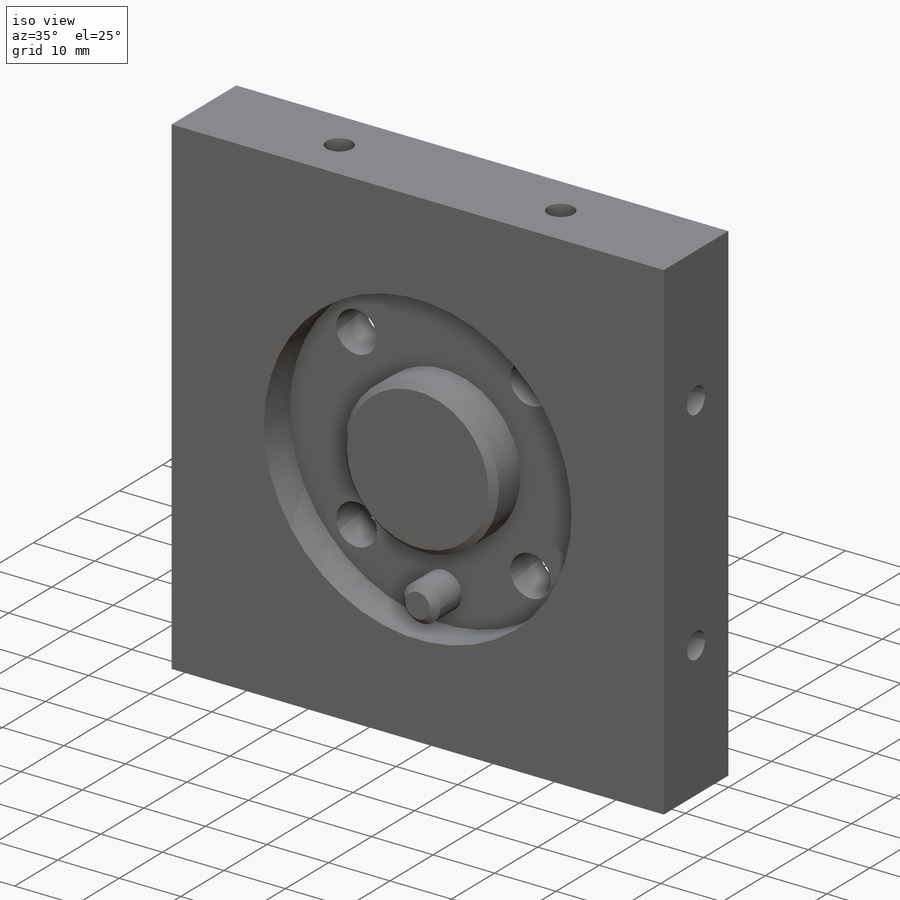
[diagram: iso view]
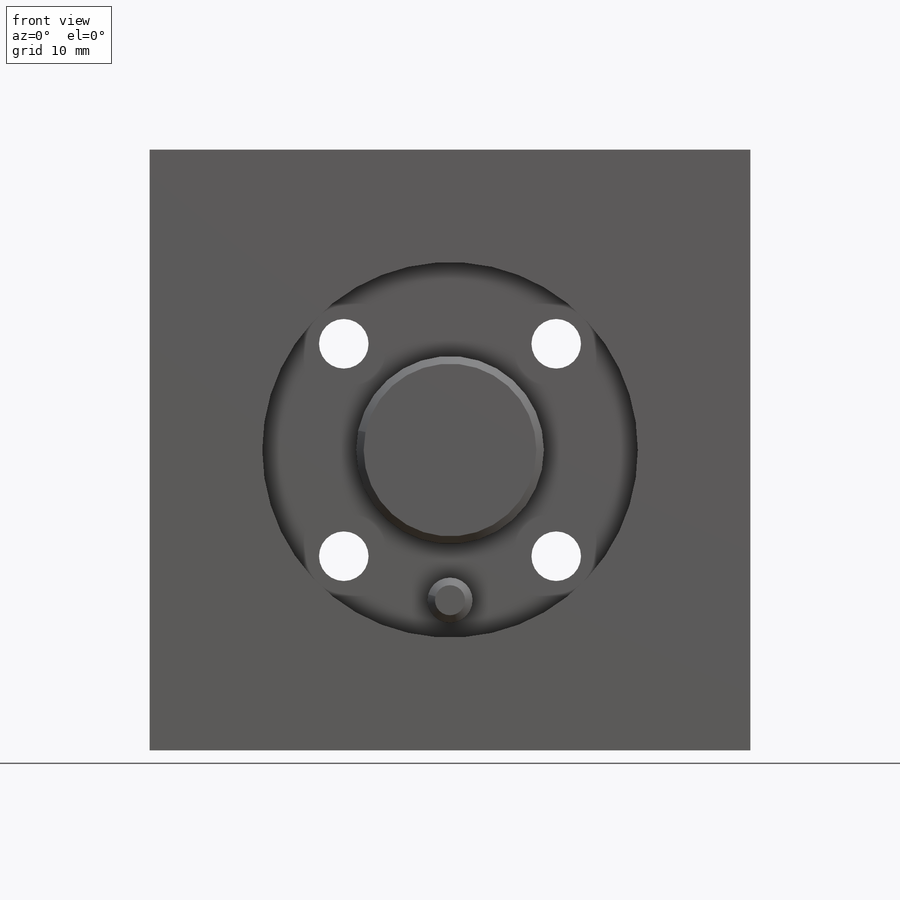
[diagram: front view]
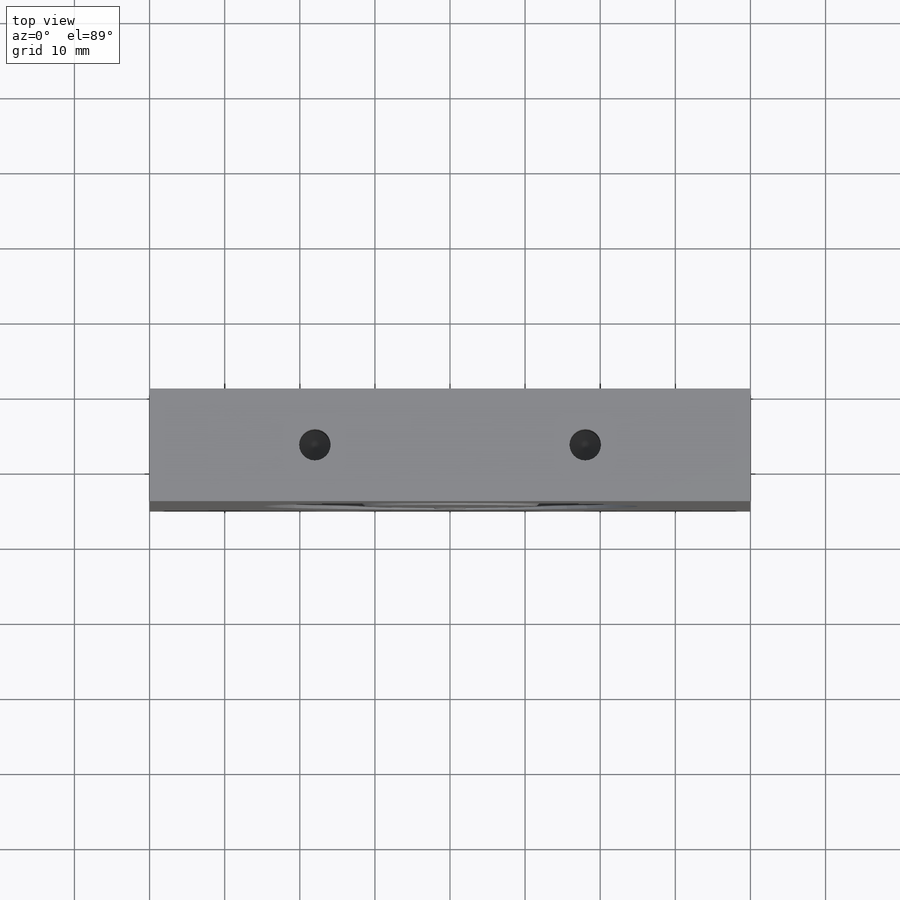
[diagram: top view]
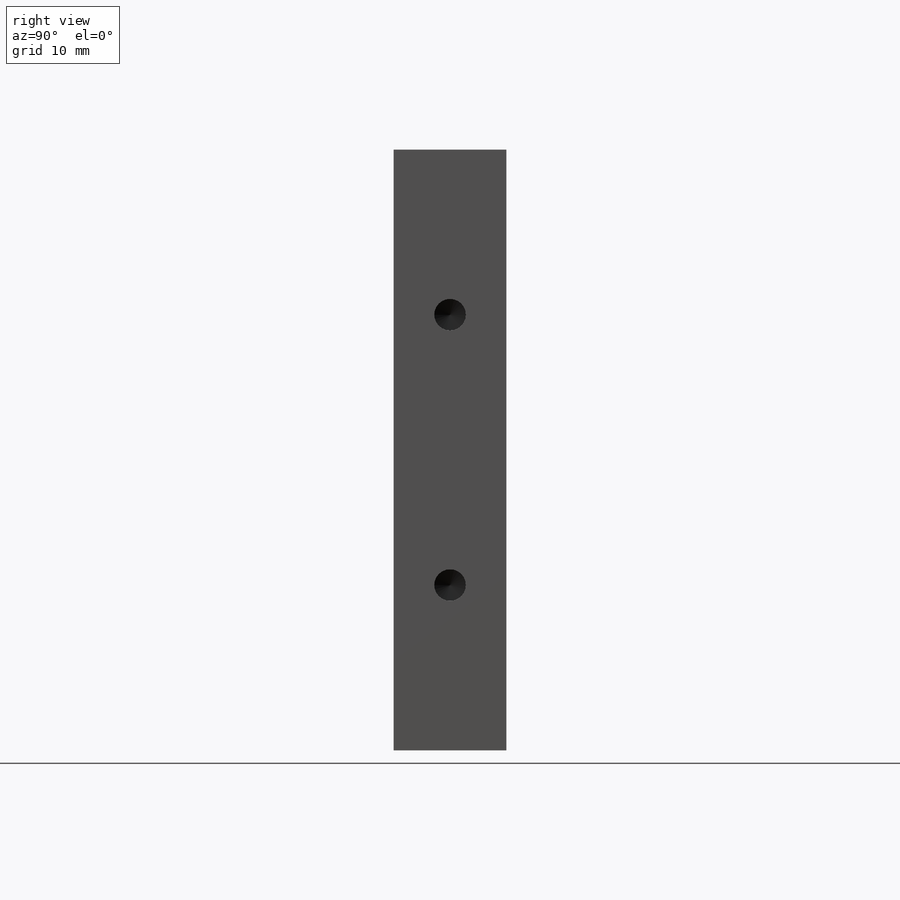
[diagram: right view]
SOLIDWORKS PART (.sldprt)
format: sldprt  version: not decoded by parser v0  size: 346,112 bytes
history: native  units: mm
features: sketch x9, hole x3, thread x3, mirror x2, material x1, extrude x1, cut_extrude x1, pattern_circular x1, plane x1, chamfer x1 (+16 scaffold rows collapsed)
feature tree (39):
  scaffold x16  (default folders/planes/origin — collapsed)
  material  "5083-H11"
  sketch  "Sketch6"  dims[c1.D1=80.0mm c1.D2=80.0mm c1.D3=40.0mm c1.D4=~58.510924mm c2.D4=90.0deg c3.D4=40.0mm]
  extrude  "Extrude2"  Depth=15mm
  sketch  "Sketch7"  dims[D1=50.0mm D2=25.0mm D4=6.0mm D3=20.0mm D5=20.0mm]
  cut_extrude  "Extrude3"  Depth=6mm
  hole  "CBORE for M6 Hex Socket Head Cap Screw1"  Diameter=6.6mm Depth=9.001mm
  sketch  "3DSketch1"  dims[c1.D1=~19.018992mm c2.D1=45.0deg c2.D2=0.0mm c2.D3=20.0mm c2.D4=9.0mm]
  sketch  "Sketch10"  dims[hole-wizard template sketch: 42 standard entries collapsed; hole parameters kept: c12.Thru Hole Depth=9.001mm c12.C'Bore Dia.=11.0mm c12.C'Bore Depth=2.0mm]
  sketch  "3DSketch2"
  pattern_circular  "CirPattern1"  Count=4 Angle=90deg
  plane  "Plane1"  Offset=40mm
  chamfer  "Chamfer1"  Distance=1mm Angle=45deg
  hole  "M5 Tapped Hole1"  Diameter=4.2mm Depth=12.4mm
  sketch  "Sketch12"  dims[D1=22.0mm]
  sketch  "Sketch11"  dims[hole-wizard template sketch: 47 standard entries collapsed; hole parameters kept: c15.Tap Drill Depth=12.4mm c15.D3=~14.816244mm c15.Drill Angle=118.0deg]
  thread  "Hole Thread1"  Diameter=10mm  [1 undecoded]
  hole  "M5 Tapped Hole2"  Diameter=4.2mm Depth=12.4mm
  sketch  "Sketch14"  dims[D1=22.0mm D2=22.0mm]
  sketch  "Sketch13"  dims[hole-wizard template sketch: 47 standard entries collapsed; hole parameters kept: c15.Tap Drill Depth=12.4mm c15.D3=~14.816244mm c15.Drill Angle=118.0deg]
  thread  "Hole Thread2"  Diameter=10mm  [1 undecoded]
  thread  "Hole Thread3"  Diameter=10mm  [1 undecoded]
  mirror  "Mirror1"
  mirror  "Mirror2"
decode coverage: 18 of 21 modeling features carry decoded parameters
note: ~ marks probable driven/reference dimensions
note: 3 parameter values undecoded
note: suppression state not decoded; provenance and decode notes live in map.json
